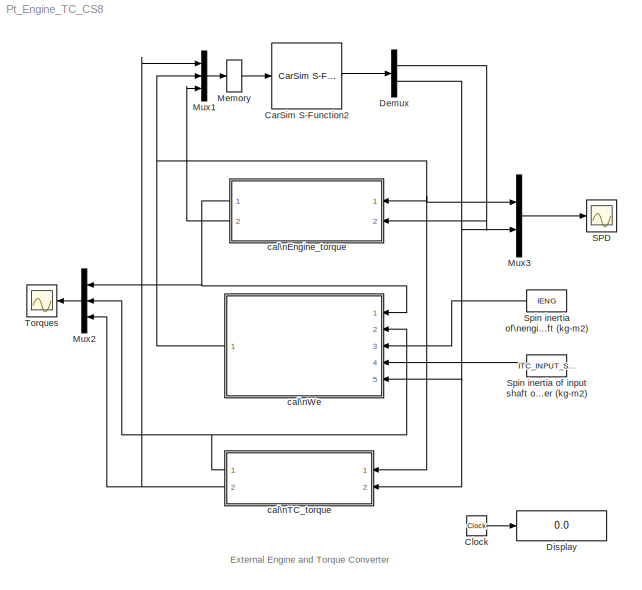
MODEL Pt_Engine_TC_CS8
KIND model
CONFIG PreLoadFcn = cd Extensions/Simulink/pt_engine_tc	\nmengine_carpet_eclass	\ntorq_conv_map_eclass	\nRun_ft4wd_eclass	\ncd ../../..
BLOCK [Reference] CarSim S-Function2  REF=Solver_SF/CarSim S-Function2
  AttributesFormatString = Vehicle Code: %<VehicleCode>
  Ports = [1, 1]
  Priority = 1
  SourceBlock = Solver_SF/CarSim S-Function2
  SourceType = Vehicle math model library
  VehicleCode = ???
BLOCK [Clock] Clock
  Decimation = 10
BLOCK [Demux] Demux
  Outputs = 2
  Ports = [1, 2]
BLOCK [Display] Display
  Decimation = 1
  Lockdown = off
  Ports = [1]
BLOCK [Memory] Memory
BLOCK [Mux] Mux1
  DisplayOption = bar
  Inputs = 3
  Ports = [3, 1]
BLOCK [Mux] Mux2
  DisplayOption = bar
  Inputs = 3
  Ports = [3, 1]
BLOCK [Mux] Mux3
  DisplayOption = bar
  Inputs = 2
  Ports = [2, 1]
BLOCK [Scope] SPD
  DataFormat = StructureWithTime
  Floating = off
  LimitDataPoints = off
  NumInputPorts = 1
  Ports = [1]
  TimeRange = 20
  YMax = 4500
  YMin = 0
BLOCK [Constant] Spin inertia of input shaft of\ntorque converter (kg-m2)
  OutDataType = sfix(16)
  OutScaling = 2^0
  Value = ITC_INPUT_SHAFT
BLOCK [Constant] Spin inertia of\nengine crankshaft (kg-m2)
  OutDataType = sfix(16)
  OutScaling = 2^0
  Value = IENG
BLOCK [Scope] Torques
  DataFormat = StructureWithTime
  Floating = off
  LimitDataPoints = off
  NumInputPorts = 1
  Ports = [1]
  TimeRange = 20
  YMax = 600
  YMin = -50
  ZoomMode = yonly
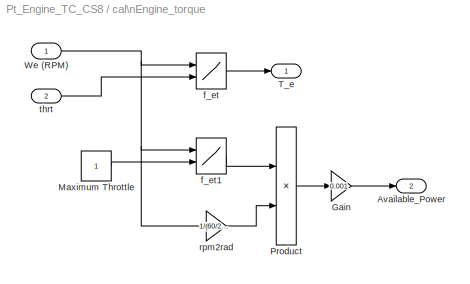
BLOCK [SubSystem] cal\nEngine_torque
  FunctionWithSeparateData = off
  MaskHideContents = off
  MinAlgLoopOccurrences = off
  Ports = [2, 2]
  PropExecContextOutsideSubsystem = off
  RTWSystemCode = Auto
BLOCK [Outport] cal\nEngine_torque/Available_Power
  IconDisplay = Port number
  Port = 2
BLOCK [Gain] cal\nEngine_torque/Gain
  Gain = 0.001
  OutDataType = sfix(16)
  OutScaling = 2^0
  ParameterDataType = sfix(16)
  ParameterScaling = 2^0
BLOCK [Constant] cal\nEngine_torque/Maximum Throttle
  OutDataType = sfix(16)
  OutScaling = 2^0
BLOCK [Product] cal\nEngine_torque/Product
  OutDataType = sfix(16)
  OutScaling = 2^0
  Ports = [2, 1]
  RndMeth = Floor
BLOCK [Outport] cal\nEngine_torque/T_e
  IconDisplay = Port number
BLOCK [Inport] cal\nEngine_torque/We (RPM)
  IconDisplay = Port number
  OutDataType = sfix(16)
  OutScaling = 2^0
BLOCK [Lookup2D] cal\nEngine_torque/f_et
  ColumnIndex = MENGINE_CARPET(1,2:11)
  OutDataType = sfix(16)
  OutScaling = 2^0
  RowIndex = MENGINE_CARPET(2:19,1)
  Table = MENGINE_CARPET(2:19,2:11)
BLOCK [Lookup2D] cal\nEngine_torque/f_et1
  ColumnIndex = MENGINE_CARPET(1,2:11)
  OutDataType = sfix(16)
  OutScaling = 2^0
  RowIndex = MENGINE_CARPET(2:19,1)
  Table = MENGINE_CARPET(2:19,2:11)
BLOCK [Gain] cal\nEngine_torque/rpm2rad
  Gain = 1/(60/2/pi)
  OutDataType = sfix(16)
  OutScaling = 2^0
  ParameterDataType = sfix(16)
  ParameterScaling = 2^0
BLOCK [Inport] cal\nEngine_torque/thrt
  IconDisplay = Port number
  OutDataType = sfix(16)
  OutScaling = 2^0
  Port = 2
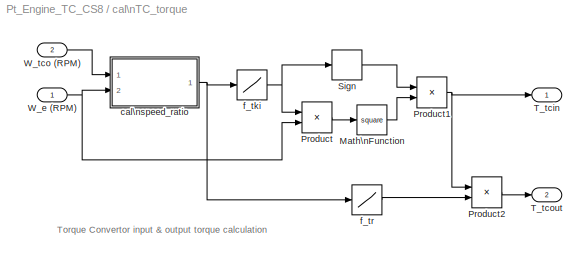
BLOCK [SubSystem] cal\nTC_torque
  FunctionWithSeparateData = off
  MaskHideContents = off
  MinAlgLoopOccurrences = off
  Ports = [2, 2]
  PropExecContextOutsideSubsystem = off
  RTWSystemCode = Auto
BLOCK [Math] cal\nTC_torque/Math\nFunction
  Operator = square
  Ports = [1, 1]
BLOCK [Product] cal\nTC_torque/Product
  OutDataType = sfix(16)
  OutScaling = 2^0
  Ports = [2, 1]
  RndMeth = Floor
BLOCK [Product] cal\nTC_torque/Product1
  OutDataType = sfix(16)
  OutScaling = 2^0
  Ports = [2, 1]
  RndMeth = Floor
BLOCK [Product] cal\nTC_torque/Product2
  OutDataType = sfix(16)
  OutScaling = 2^0
  Ports = [2, 1]
  RndMeth = Floor
BLOCK [Signum] cal\nTC_torque/Sign
BLOCK [Outport] cal\nTC_torque/T_tcin
  IconDisplay = Port number
BLOCK [Outport] cal\nTC_torque/T_tcout
  IconDisplay = Port number
  Port = 2
BLOCK [Inport] cal\nTC_torque/W_e (RPM)
  IconDisplay = Port number
  OutDataType = sfix(16)
  OutScaling = 2^0
BLOCK [Inport] cal\nTC_torque/W_tco (RPM)
  IconDisplay = Port number
  OutDataType = sfix(16)
  OutScaling = 2^0
  Port = 2
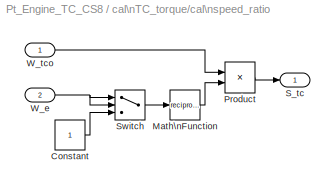
BLOCK [SubSystem] cal\nTC_torque/cal\nspeed_ratio
  FunctionWithSeparateData = off
  MaskHideContents = off
  MinAlgLoopOccurrences = off
  Ports = [2, 1]
  PropExecContextOutsideSubsystem = off
  RTWSystemCode = Auto
BLOCK [Constant] cal\nTC_torque/cal\nspeed_ratio/Constant
  OutDataType = sfix(16)
  OutScaling = 2^0
BLOCK [Math] cal\nTC_torque/cal\nspeed_ratio/Math\nFunction
  Operator = reciprocal
  Ports = [1, 1]
BLOCK [Product] cal\nTC_torque/cal\nspeed_ratio/Product
  OutDataType = sfix(16)
  OutScaling = 2^0
  Ports = [2, 1]
  RndMeth = Floor
BLOCK [Outport] cal\nTC_torque/cal\nspeed_ratio/S_tc
  IconDisplay = Port number
BLOCK [Switch] cal\nTC_torque/cal\nspeed_ratio/Switch
  Threshold = 1
BLOCK [Inport] cal\nTC_torque/cal\nspeed_ratio/W_e
  IconDisplay = Port number
  OutDataType = sfix(16)
  OutScaling = 2^0
  Port = 2
BLOCK [Inport] cal\nTC_torque/cal\nspeed_ratio/W_tco
  IconDisplay = Port number
  OutDataType = sfix(16)
  OutScaling = 2^0
BLOCK [Lookup] cal\nTC_torque/f_tki
  InputValues = INV_CAP_TC_TABLE(:,1)
  OutDataType = sfix(16)
  OutScaling = 2^0
  Table = INV_CAP_TC_TABLE(:,2)
BLOCK [Lookup] cal\nTC_torque/f_tr
  InputValues = RM_TC_TABLE(:,1)
  OutDataType = sfix(16)
  OutScaling = 2^0
  Table = RM_TC_TABLE(:,2)
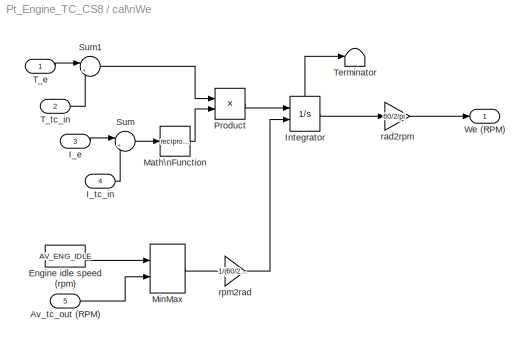
BLOCK [SubSystem] cal\nWe
  FunctionWithSeparateData = off
  MaskHideContents = off
  MinAlgLoopOccurrences = off
  Ports = [5, 1]
  PropExecContextOutsideSubsystem = off
  RTWSystemCode = Auto
BLOCK [Inport] cal\nWe/Av_tc_out (RPM)
  IconDisplay = Port number
  OutDataType = sfix(16)
  OutScaling = 2^0
  Port = 5
BLOCK [Constant] cal\nWe/Engine idle speed (rpm)
  OutDataType = sfix(16)
  OutScaling = 2^0
  Value = AV_ENG_IDLE
BLOCK [Inport] cal\nWe/I_e
  IconDisplay = Port number
  OutDataType = sfix(16)
  OutScaling = 2^0
  Port = 3
BLOCK [Inport] cal\nWe/I_tc_in
  IconDisplay = Port number
  OutDataType = sfix(16)
  OutScaling = 2^0
  Port = 4
BLOCK [Integrator] cal\nWe/Integrator
  InitialCondition = AV_ENG_IDLE*2*pi/60
  InitialConditionSource = external
  Ports = [2, 1, 0, 0, 1]
  ShowStatePort = on
BLOCK [Math] cal\nWe/Math\nFunction
  Operator = reciprocal
  Ports = [1, 1]
BLOCK [MinMax] cal\nWe/MinMax
  Function = max
  Inputs = 2
  Ports = [2, 1]
BLOCK [Product] cal\nWe/Product
  OutDataType = sfix(16)
  OutScaling = 2^0
  Ports = [2, 1]
  RndMeth = Floor
BLOCK [Sum] cal\nWe/Sum
  IconShape = round
  Inputs = |++
  OutDataType = sfix(16)
  OutScaling = 2^0
  Ports = [2, 1]
BLOCK [Sum] cal\nWe/Sum1
  IconShape = round
  Inputs = |+-
  OutDataType = sfix(16)
  OutScaling = 2^0
  Ports = [2, 1]
BLOCK [Inport] cal\nWe/T_e
  IconDisplay = Port number
  OutDataType = sfix(16)
  OutScaling = 2^0
BLOCK [Inport] cal\nWe/T_tc_in
  IconDisplay = Port number
  OutDataType = sfix(16)
  OutScaling = 2^0
  Port = 2
BLOCK [Terminator] cal\nWe/Terminator
BLOCK [Outport] cal\nWe/We (RPM)
  IconDisplay = Port number
BLOCK [Gain] cal\nWe/rad2rpm
  Gain = 60/2/pi
  OutDataType = sfix(16)
  OutScaling = 2^0
  ParameterDataType = sfix(16)
  ParameterScaling = 2^0
BLOCK [Gain] cal\nWe/rpm2rad
  Gain = 1/(60/2/pi)
  OutDataType = sfix(16)
  OutScaling = 2^0
  ParameterDataType = sfix(16)
  ParameterScaling = 2^0
ANNOTATION (root): External Engine and Torque Converter
ANNOTATION cal\nTC_torque: Torque Convertor input & output torque calculation
LINE CarSim S-Function2:1 -> Demux:1
LINE Clock:1 -> Display:1
LINE Demux:1 -> cal\nEngine_torque:2
NET Demux:2 -> Mux3:2, cal\nTC_torque:2, cal\nWe:5
LINE Memory:1 -> CarSim S-Function2:1
LINE Mux1:1 -> Memory:1
LINE Mux2:1 -> Torques:1
LINE Mux3:1 -> SPD:1
LINE Spin inertia of input shaft of\ntorque converter (kg-m2):1 -> cal\nWe:4
LINE Spin inertia of\nengine crankshaft (kg-m2):1 -> cal\nWe:3
LINE cal\nEngine_torque/Gain:1 -> cal\nEngine_torque/Available_Power:1
LINE cal\nEngine_torque/Maximum Throttle:1 -> cal\nEngine_torque/f_et1:2
LINE cal\nEngine_torque/Product:1 -> cal\nEngine_torque/Gain:1
NET cal\nEngine_torque/We (RPM):1 -> cal\nEngine_torque/f_et1:1, cal\nEngine_torque/f_et:1, cal\nEngine_torque/rpm2rad:1
LINE cal\nEngine_torque/f_et1:1 -> cal\nEngine_torque/Product:1
LINE cal\nEngine_torque/f_et:1 -> cal\nEngine_torque/T_e:1
LINE cal\nEngine_torque/rpm2rad:1 -> cal\nEngine_torque/Product:2
LINE cal\nEngine_torque/thrt:1 -> cal\nEngine_torque/f_et:2
NET cal\nEngine_torque:1 -> Mux2:1, cal\nWe:1
LINE cal\nEngine_torque:2 -> Mux1:3
LINE cal\nTC_torque/Math\nFunction:1 -> cal\nTC_torque/Product1:2
NET cal\nTC_torque/Product1:1 -> cal\nTC_torque/Product2:1, cal\nTC_torque/T_tcin:1
LINE cal\nTC_torque/Product2:1 -> cal\nTC_torque/T_tcout:1
LINE cal\nTC_torque/Product:1 -> cal\nTC_torque/Math\nFunction:1
LINE cal\nTC_torque/Sign:1 -> cal\nTC_torque/Product1:1
NET cal\nTC_torque/W_e (RPM):1 -> cal\nTC_torque/Product:2, cal\nTC_torque/cal\nspeed_ratio:2
LINE cal\nTC_torque/W_tco (RPM):1 -> cal\nTC_torque/cal\nspeed_ratio:1
LINE cal\nTC_torque/cal\nspeed_ratio/Constant:1 -> cal\nTC_torque/cal\nspeed_ratio/Switch:3
LINE cal\nTC_torque/cal\nspeed_ratio/Math\nFunction:1 -> cal\nTC_torque/cal\nspeed_ratio/Product:2
LINE cal\nTC_torque/cal\nspeed_ratio/Product:1 -> cal\nTC_torque/cal\nspeed_ratio/S_tc:1
LINE cal\nTC_torque/cal\nspeed_ratio/Switch:1 -> cal\nTC_torque/cal\nspeed_ratio/Math\nFunction:1
NET cal\nTC_torque/cal\nspeed_ratio/W_e:1 -> cal\nTC_torque/cal\nspeed_ratio/Switch:1, cal\nTC_torque/cal\nspeed_ratio/Switch:2
LINE cal\nTC_torque/cal\nspeed_ratio/W_tco:1 -> cal\nTC_torque/cal\nspeed_ratio/Product:1
NET cal\nTC_torque/cal\nspeed_ratio:1 -> cal\nTC_torque/f_tki:1, cal\nTC_torque/f_tr:1
NET cal\nTC_torque/f_tki:1 -> cal\nTC_torque/Product:1, cal\nTC_torque/Sign:1
LINE cal\nTC_torque/f_tr:1 -> cal\nTC_torque/Product2:2
NET cal\nTC_torque:1 -> Mux2:2, cal\nWe:2
NET cal\nTC_torque:2 -> Mux1:1, Mux2:3
LINE cal\nWe/Av_tc_out (RPM):1 -> cal\nWe/MinMax:2
LINE cal\nWe/Engine idle speed (rpm):1 -> cal\nWe/MinMax:1
LINE cal\nWe/I_e:1 -> cal\nWe/Sum:1
LINE cal\nWe/I_tc_in:1 -> cal\nWe/Sum:2
LINE cal\nWe/Integrator:1 -> cal\nWe/rad2rpm:1
LINE cal\nWe/Integrator:state -> cal\nWe/Terminator:1
LINE cal\nWe/Math\nFunction:1 -> cal\nWe/Product:2
LINE cal\nWe/MinMax:1 -> cal\nWe/rpm2rad:1
LINE cal\nWe/Product:1 -> cal\nWe/Integrator:1
LINE cal\nWe/Sum1:1 -> cal\nWe/Product:1
LINE cal\nWe/Sum:1 -> cal\nWe/Math\nFunction:1
LINE cal\nWe/T_e:1 -> cal\nWe/Sum1:1
LINE cal\nWe/T_tc_in:1 -> cal\nWe/Sum1:2
LINE cal\nWe/rad2rpm:1 -> cal\nWe/We (RPM):1
LINE cal\nWe/rpm2rad:1 -> cal\nWe/Integrator:2
NET cal\nWe:1 -> Mux1:2, Mux3:1, cal\nEngine_torque:1, cal\nTC_torque:1
note: NET lines group one-source signal fan-out (src -> all destinations, sorted); 1:1 wires keep LINE
